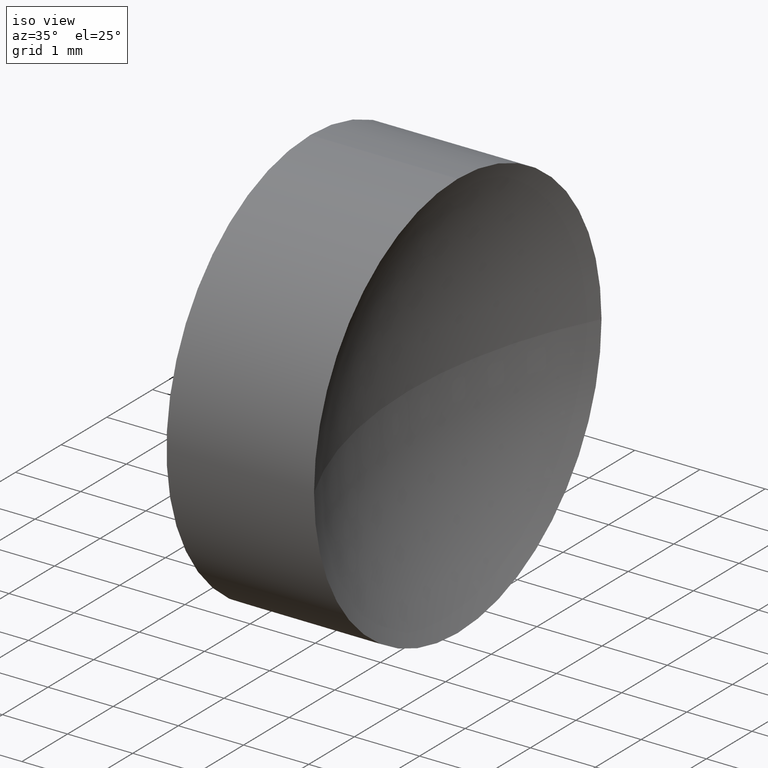
[diagram: clean part render]
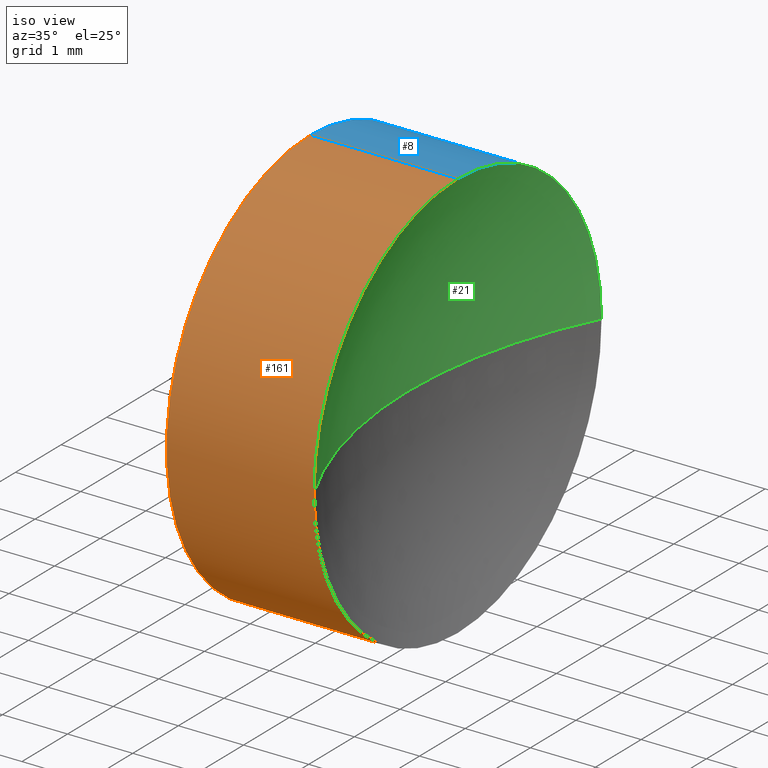
[diagram: same view with three faces highlighted in distinct colors, each labeled with its STEP entity id]
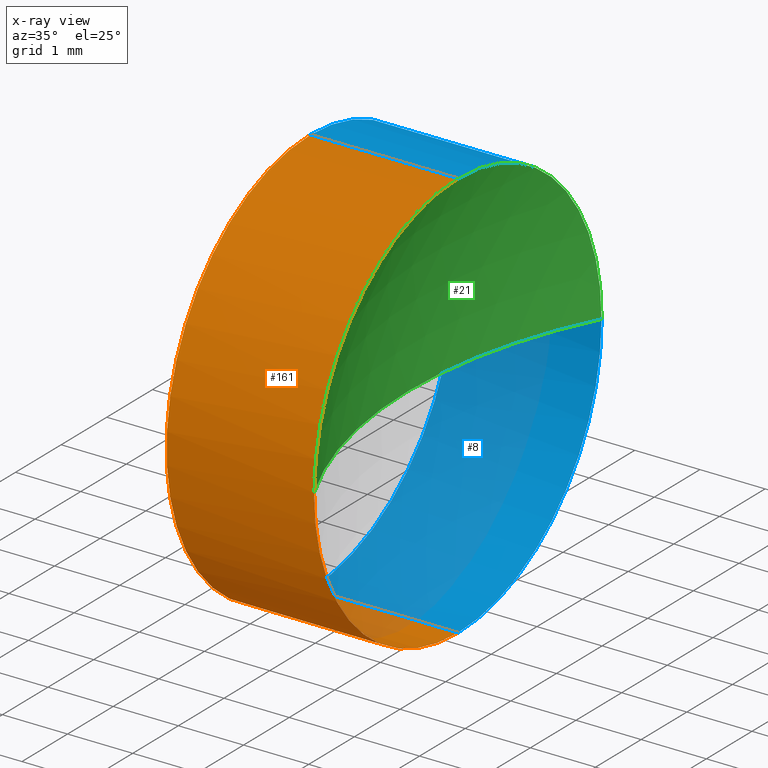
[diagram: x-ray of the same camera — body ghosted, the three highlighted faces saturated]
A machine part, iso view with three faces highlighted in distinct colors.
The next image is the same camera in x-ray (body ghosted, the three faces saturated) — at least one of them is partly hidden behind the body in this view.
Their STEP definitions:

[orange] entity #161 — the highlighted cylindrical surface (partial cylindrical patch) has radius 3.15 mm, axis along (-1, -0, -0).
#3 = CARTESIAN_POINT ( 'NONE',  ( 21.15647192244426100, 13.03112609140304000, 3.149999999999998100 ) ) ;
#7 = DIRECTION ( 'NONE',  ( -1.000000000000000000, -0.0000000000000000000, -0.0000000000000000000 ) ) ;
#9 = EDGE_CURVE ( 'NONE', #129, #145, #72, .T. ) ;
#14 = VERTEX_POINT ( 'NONE', #81 ) ;
#16 = CYLINDRICAL_SURFACE ( 'NONE', #143, 3.149999999999998100 ) ;
#26 = CARTESIAN_POINT ( 'NONE',  ( 24.46435373033985200, 13.03112609140304000, 0.0000000000000000000 ) ) ;
#28 = CARTESIAN_POINT ( 'NONE',  ( 22.20087548928661300, 13.03112609140304000, 0.0000000000000000000 ) ) ;
#30 = CARTESIAN_POINT ( 'NONE',  ( 24.46435373033985200, 13.03112609140304000, 0.0000000000000000000 ) ) ;
#32 = CARTESIAN_POINT ( 'NONE',  ( 24.46435373033985200, 13.03112609140304000, -3.149999999999998100 ) ) ;
#36 = VECTOR ( 'NONE', #101, 1000.000000000000000 ) ;
#40 = CIRCLE ( 'NONE', #95, 3.149999999999998100 ) ;
#42 = DIRECTION ( 'NONE',  ( 0.0000000000000000000, 0.0000000000000000000, 1.000000000000000000 ) ) ;
#44 = AXIS2_PLACEMENT_3D ( 'NONE', #28, #153, #56 ) ;
#50 = LINE ( 'NONE', #88, #92 ) ;
#56 = DIRECTION ( 'NONE',  ( 0.0000000000000000000, 0.0000000000000000000, 1.000000000000000000 ) ) ;
#57 = DIRECTION ( 'NONE',  ( -1.000000000000000000, -0.0000000000000000000, -0.0000000000000000000 ) ) ;
#61 = VERTEX_POINT ( 'NONE', #115 ) ;
#63 = EDGE_LOOP ( 'NONE', ( #168, #183, #86, #82, #170 ) ) ;
#67 = CARTESIAN_POINT ( 'NONE',  ( 24.46435373033985200, 9.881126091403043400, 0.0000000000000000000 ) ) ;
#72 = CIRCLE ( 'NONE', #109, 3.149999999999998100 ) ;
#81 = CARTESIAN_POINT ( 'NONE',  ( 22.20087548928661300, 13.03112609140304000, -3.149999999999998100 ) ) ;
#82 = ORIENTED_EDGE ( 'NONE', *, *, #107, .T. ) ;
#86 = ORIENTED_EDGE ( 'NONE', *, *, #103, .T. ) ;
#88 = CARTESIAN_POINT ( 'NONE',  ( 21.15647192244426100, 13.03112609140304000, -3.149999999999998100 ) ) ;
#92 = VECTOR ( 'NONE', #57, 1000.000000000000000 ) ;
#95 = AXIS2_PLACEMENT_3D ( 'NONE', #30, #7, #133 ) ;
#97 = DIRECTION ( 'NONE',  ( -1.000000000000000000, -0.0000000000000000000, -0.0000000000000000000 ) ) ;
#101 = DIRECTION ( 'NONE',  ( -1.000000000000000000, -0.0000000000000000000, -0.0000000000000000000 ) ) ;
#102 = CARTESIAN_POINT ( 'NONE',  ( 24.46435373033985200, 13.03112609140304000, 3.149999999999998100 ) ) ;
#103 = EDGE_CURVE ( 'NONE', #145, #177, #40, .T. ) ;
#107 = EDGE_CURVE ( 'NONE', #177, #61, #139, .T. ) ;
#109 = AXIS2_PLACEMENT_3D ( 'NONE', #26, #97, #176 ) ;
#115 = CARTESIAN_POINT ( 'NONE',  ( 22.20087548928661300, 13.03112609140304000, 3.149999999999998100 ) ) ;
#122 = CIRCLE ( 'NONE', #44, 3.149999999999998100 ) ;
#129 = VERTEX_POINT ( 'NONE', #32 ) ;
#133 = DIRECTION ( 'NONE',  ( 0.0000000000000000000, 0.0000000000000000000, 1.000000000000000000 ) ) ;
#137 = CARTESIAN_POINT ( 'NONE',  ( 21.15647192244426100, 13.03112609140304000, 0.0000000000000000000 ) ) ;
#138 = EDGE_CURVE ( 'NONE', #129, #14, #50, .T. ) ;
#139 = LINE ( 'NONE', #3, #36 ) ;
#143 = AXIS2_PLACEMENT_3D ( 'NONE', #137, #158, #42 ) ;
#145 = VERTEX_POINT ( 'NONE', #67 ) ;
#150 = EDGE_CURVE ( 'NONE', #14, #61, #122, .T. ) ;
#153 = DIRECTION ( 'NONE',  ( -1.000000000000000000, -0.0000000000000000000, -0.0000000000000000000 ) ) ;
#158 = DIRECTION ( 'NONE',  ( -1.000000000000000000, -0.0000000000000000000, -0.0000000000000000000 ) ) ;
#161 = ADVANCED_FACE ( 'NONE', ( #173 ), #16, .T. ) ;
#168 = ORIENTED_EDGE ( 'NONE', *, *, #138, .F. ) ;
#170 = ORIENTED_EDGE ( 'NONE', *, *, #150, .F. ) ;
#173 = FACE_OUTER_BOUND ( 'NONE', #63, .T. ) ;
#176 = DIRECTION ( 'NONE',  ( 0.0000000000000000000, 0.0000000000000000000, 1.000000000000000000 ) ) ;
#177 = VERTEX_POINT ( 'NONE', #102 ) ;
#183 = ORIENTED_EDGE ( 'NONE', *, *, #9, .T. ) ;

[blue] entity #8 — the highlighted cylindrical surface (partial cylindrical patch) has radius 3.15 mm, axis along (-1, -0, -0).
#1 = EDGE_CURVE ( 'NONE', #61, #14, #114, .T. ) ;
#3 = CARTESIAN_POINT ( 'NONE',  ( 21.15647192244426100, 13.03112609140304000, 3.149999999999998100 ) ) ;
#5 = ORIENTED_EDGE ( 'NONE', *, *, #107, .F. ) ;
#8 = ADVANCED_FACE ( 'NONE', ( #108 ), #39, .T. ) ;
#12 = DIRECTION ( 'NONE',  ( -1.000000000000000000, -0.0000000000000000000, -0.0000000000000000000 ) ) ;
#13 = DIRECTION ( 'NONE',  ( 0.0000000000000000000, 0.0000000000000000000, 1.000000000000000000 ) ) ;
#14 = VERTEX_POINT ( 'NONE', #81 ) ;
#15 = DIRECTION ( 'NONE',  ( 0.0000000000000000000, 0.0000000000000000000, 1.000000000000000000 ) ) ;
#18 = ORIENTED_EDGE ( 'NONE', *, *, #70, .T. ) ;
#22 = CIRCLE ( 'NONE', #74, 3.149999999999998100 ) ;
#32 = CARTESIAN_POINT ( 'NONE',  ( 24.46435373033985200, 13.03112609140304000, -3.149999999999998100 ) ) ;
#36 = VECTOR ( 'NONE', #101, 1000.000000000000000 ) ;
#39 = CYLINDRICAL_SURFACE ( 'NONE', #123, 3.149999999999998100 ) ;
#48 = VERTEX_POINT ( 'NONE', #152 ) ;
#50 = LINE ( 'NONE', #88, #92 ) ;
#52 = ORIENTED_EDGE ( 'NONE', *, *, #80, .T. ) ;
#57 = DIRECTION ( 'NONE',  ( -1.000000000000000000, -0.0000000000000000000, -0.0000000000000000000 ) ) ;
#61 = VERTEX_POINT ( 'NONE', #115 ) ;
#70 = EDGE_CURVE ( 'NONE', #48, #129, #22, .T. ) ;
#74 = AXIS2_PLACEMENT_3D ( 'NONE', #169, #135, #121 ) ;
#79 = EDGE_LOOP ( 'NONE', ( #18, #184, #160, #5, #52 ) ) ;
#80 = EDGE_CURVE ( 'NONE', #177, #48, #113, .T. ) ;
#81 = CARTESIAN_POINT ( 'NONE',  ( 22.20087548928661300, 13.03112609140304000, -3.149999999999998100 ) ) ;
#84 = DIRECTION ( 'NONE',  ( -1.000000000000000000, -0.0000000000000000000, -0.0000000000000000000 ) ) ;
#88 = CARTESIAN_POINT ( 'NONE',  ( 21.15647192244426100, 13.03112609140304000, -3.149999999999998100 ) ) ;
#89 = CARTESIAN_POINT ( 'NONE',  ( 24.46435373033985200, 13.03112609140304000, 0.0000000000000000000 ) ) ;
#92 = VECTOR ( 'NONE', #57, 1000.000000000000000 ) ;
#98 = DIRECTION ( 'NONE',  ( -1.000000000000000000, -0.0000000000000000000, -0.0000000000000000000 ) ) ;
#100 = AXIS2_PLACEMENT_3D ( 'NONE', #110, #98, #15 ) ;
#101 = DIRECTION ( 'NONE',  ( -1.000000000000000000, -0.0000000000000000000, -0.0000000000000000000 ) ) ;
#102 = CARTESIAN_POINT ( 'NONE',  ( 24.46435373033985200, 13.03112609140304000, 3.149999999999998100 ) ) ;
#107 = EDGE_CURVE ( 'NONE', #177, #61, #139, .T. ) ;
#108 = FACE_OUTER_BOUND ( 'NONE', #79, .T. ) ;
#110 = CARTESIAN_POINT ( 'NONE',  ( 22.20087548928661300, 13.03112609140304000, 0.0000000000000000000 ) ) ;
#113 = CIRCLE ( 'NONE', #120, 3.149999999999998100 ) ;
#114 = CIRCLE ( 'NONE', #100, 3.149999999999998100 ) ;
#115 = CARTESIAN_POINT ( 'NONE',  ( 22.20087548928661300, 13.03112609140304000, 3.149999999999998100 ) ) ;
#117 = DIRECTION ( 'NONE',  ( 0.0000000000000000000, 0.0000000000000000000, 1.000000000000000000 ) ) ;
#120 = AXIS2_PLACEMENT_3D ( 'NONE', #89, #84, #117 ) ;
#121 = DIRECTION ( 'NONE',  ( 0.0000000000000000000, 0.0000000000000000000, 1.000000000000000000 ) ) ;
#123 = AXIS2_PLACEMENT_3D ( 'NONE', #132, #12, #13 ) ;
#129 = VERTEX_POINT ( 'NONE', #32 ) ;
#132 = CARTESIAN_POINT ( 'NONE',  ( 21.15647192244426100, 13.03112609140304000, 0.0000000000000000000 ) ) ;
#135 = DIRECTION ( 'NONE',  ( -1.000000000000000000, -0.0000000000000000000, -0.0000000000000000000 ) ) ;
#138 = EDGE_CURVE ( 'NONE', #129, #14, #50, .T. ) ;
#139 = LINE ( 'NONE', #3, #36 ) ;
#152 = CARTESIAN_POINT ( 'NONE',  ( 24.46435373033985200, 16.18112609140303700, 3.857637417314159200E-016 ) ) ;
#160 = ORIENTED_EDGE ( 'NONE', *, *, #1, .F. ) ;
#169 = CARTESIAN_POINT ( 'NONE',  ( 24.46435373033985200, 13.03112609140304000, 0.0000000000000000000 ) ) ;
#177 = VERTEX_POINT ( 'NONE', #102 ) ;
#184 = ORIENTED_EDGE ( 'NONE', *, *, #138, .T. ) ;

[green] entity #21 — the highlighted spherical surface has radius 6.88 mm.
#7 = DIRECTION ( 'NONE',  ( -1.000000000000000000, -0.0000000000000000000, -0.0000000000000000000 ) ) ;
#11 = ORIENTED_EDGE ( 'NONE', *, *, #144, .F. ) ;
#21 = ADVANCED_FACE ( 'NONE', ( #164 ), #77, .F. ) ;
#27 = ORIENTED_EDGE ( 'NONE', *, *, #94, .T. ) ;
#30 = CARTESIAN_POINT ( 'NONE',  ( 24.46435373033985200, 13.03112609140304000, 0.0000000000000000000 ) ) ;
#31 = VERTEX_POINT ( 'NONE', #41 ) ;
#35 = CARTESIAN_POINT ( 'NONE',  ( 30.58088052256434300, 13.03112609140304200, 0.0000000000000000000 ) ) ;
#40 = CIRCLE ( 'NONE', #95, 3.149999999999998100 ) ;
#41 = CARTESIAN_POINT ( 'NONE',  ( 23.70088052256434400, 13.03112609140304200, 0.0000000000000000000 ) ) ;
#47 = CIRCLE ( 'NONE', #78, 6.880000000000000800 ) ;
#48 = VERTEX_POINT ( 'NONE', #152 ) ;
#60 = DIRECTION ( 'NONE',  ( 0.0000000000000000000, -1.000000000000000000, -1.224646799147353200E-016 ) ) ;
#65 = ORIENTED_EDGE ( 'NONE', *, *, #103, .F. ) ;
#67 = CARTESIAN_POINT ( 'NONE',  ( 24.46435373033985200, 9.881126091403043400, 0.0000000000000000000 ) ) ;
#68 = CARTESIAN_POINT ( 'NONE',  ( 30.58088052256434300, 13.03112609140304200, 0.0000000000000000000 ) ) ;
#69 = DIRECTION ( 'NONE',  ( 0.0000000000000000000, 0.0000000000000000000, -1.000000000000000000 ) ) ;
#77 = SPHERICAL_SURFACE ( 'NONE', #159, 6.880000000000000800 ) ;
#78 = AXIS2_PLACEMENT_3D ( 'NONE', #165, #69, #85 ) ;
#80 = EDGE_CURVE ( 'NONE', #177, #48, #113, .T. ) ;
#84 = DIRECTION ( 'NONE',  ( -1.000000000000000000, -0.0000000000000000000, -0.0000000000000000000 ) ) ;
#85 = DIRECTION ( 'NONE',  ( -1.000000000000000000, 0.0000000000000000000, 0.0000000000000000000 ) ) ;
#89 = CARTESIAN_POINT ( 'NONE',  ( 24.46435373033985200, 13.03112609140304000, 0.0000000000000000000 ) ) ;
#94 = EDGE_CURVE ( 'NONE', #145, #31, #47, .T. ) ;
#95 = AXIS2_PLACEMENT_3D ( 'NONE', #30, #7, #133 ) ;
#102 = CARTESIAN_POINT ( 'NONE',  ( 24.46435373033985200, 13.03112609140304000, 3.149999999999998100 ) ) ;
#103 = EDGE_CURVE ( 'NONE', #145, #177, #40, .T. ) ;
#104 = DIRECTION ( 'NONE',  ( 0.0000000000000000000, -1.224646799147353200E-016, 1.000000000000000000 ) ) ;
#111 = AXIS2_PLACEMENT_3D ( 'NONE', #68, #104, #60 ) ;
#113 = CIRCLE ( 'NONE', #120, 3.149999999999998100 ) ;
#117 = DIRECTION ( 'NONE',  ( 0.0000000000000000000, 0.0000000000000000000, 1.000000000000000000 ) ) ;
#120 = AXIS2_PLACEMENT_3D ( 'NONE', #89, #84, #117 ) ;
#133 = DIRECTION ( 'NONE',  ( 0.0000000000000000000, 0.0000000000000000000, 1.000000000000000000 ) ) ;
#134 = CIRCLE ( 'NONE', #111, 6.880000000000000800 ) ;
#144 = EDGE_CURVE ( 'NONE', #48, #31, #134, .T. ) ;
#145 = VERTEX_POINT ( 'NONE', #67 ) ;
#149 = DIRECTION ( 'NONE',  ( 0.0000000000000000000, 0.0000000000000000000, 1.000000000000000000 ) ) ;
#151 = DIRECTION ( 'NONE',  ( 0.0000000000000000000, -1.000000000000000000, 0.0000000000000000000 ) ) ;
#152 = CARTESIAN_POINT ( 'NONE',  ( 24.46435373033985200, 16.18112609140303700, 3.857637417314159200E-016 ) ) ;
#156 = EDGE_LOOP ( 'NONE', ( #11, #186, #65, #27 ) ) ;
#159 = AXIS2_PLACEMENT_3D ( 'NONE', #35, #149, #151 ) ;
#164 = FACE_OUTER_BOUND ( 'NONE', #156, .T. ) ;
#165 = CARTESIAN_POINT ( 'NONE',  ( 30.58088052256434300, 13.03112609140304200, 0.0000000000000000000 ) ) ;
#177 = VERTEX_POINT ( 'NONE', #102 ) ;
#186 = ORIENTED_EDGE ( 'NONE', *, *, #80, .F. ) ;